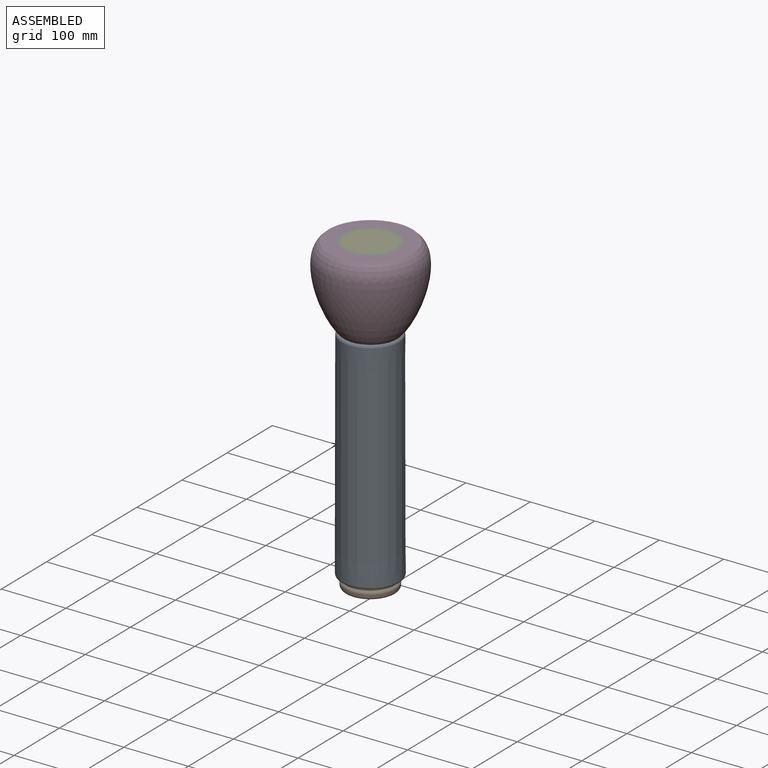
[diagram: assembled view]
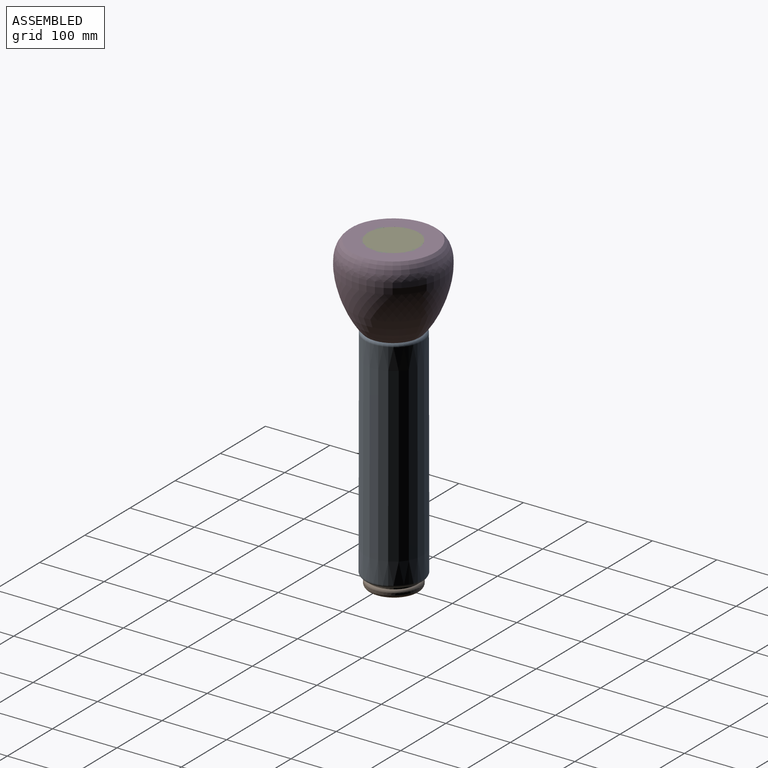
[diagram: assembled view, second angle]
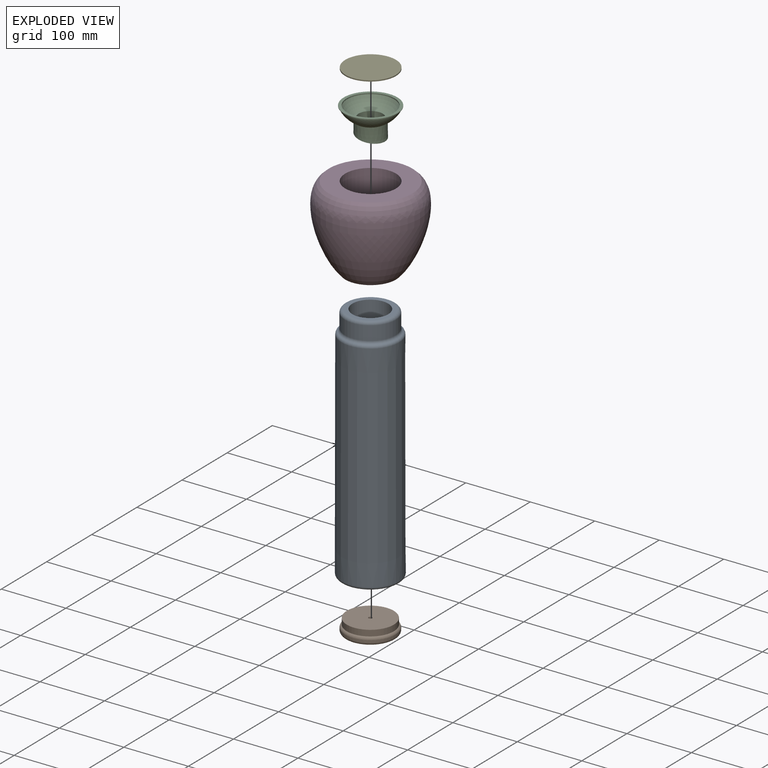
[diagram: exploded view]
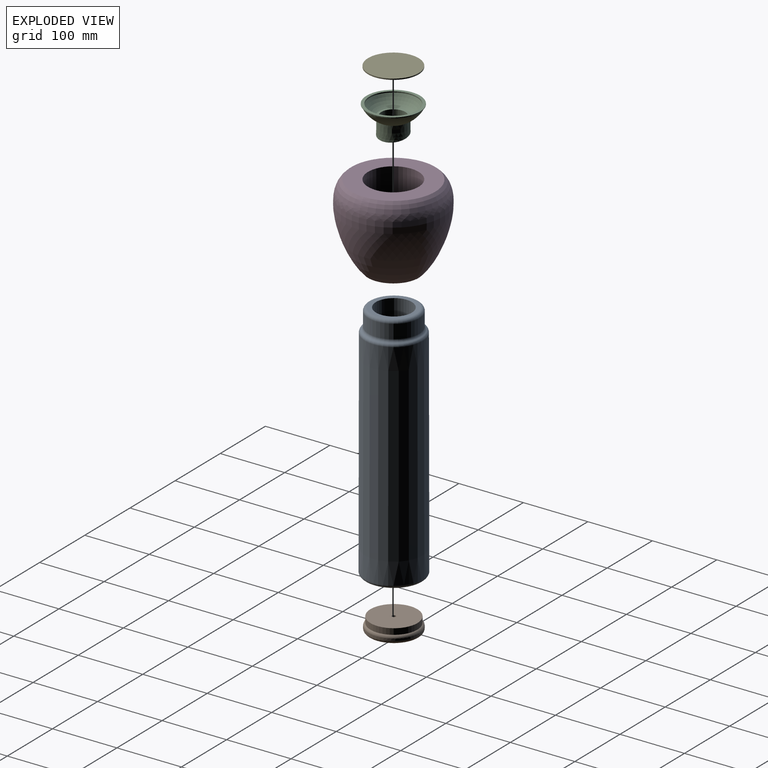
[diagram: exploded view, second angle]
ASSEMBLY  parts=5 mates=3
PART A: 11 faces, bbox 97.6x97.6x374.1 mm
  f0: plane 68.66x68.66mm, normal (0,0,1), area 1270.7mm2, adj f1,f10
  f1: cylinder r=27.82mm len=369.14mm, axis (0,0,1), area 64529.2mm2, adj f0,f6
  f2: plane 80.16x80.16mm, normal (0,0,-1), area 1661.7mm2, adj f6,f7
  f3: cone r=44.58mm half-angle=0.1deg, axis (0,0,-1), area 94033.5mm2, adj f7,f8
  f4: cone r=39.33mm half-angle=55.9deg, axis (0,0,-1), area 277.6mm2, adj f8,f9
  f5: cylinder r=39.33mm len=78.66mm, axis (0,0,1), area 5302.3mm2, adj f9,f10
  f6: torus R=32.82mm, axis (0,0,1), area 1462.6mm2, adj f1,f2
  f7: torus R=40.08mm, axis (0,0,1), area 2136.9mm2, adj f2,f3
  f8: torus R=39.59mm, axis (0,0,-1), area 1340.4mm2, adj f3,f4
  f9: torus R=44.33mm, axis (0,0,1), area 1227.6mm2, adj f4,f5
  f10: torus R=34.33mm, axis (0,0,1), area 1851.2mm2, adj f0,f5
PART B: 8 faces, bbox 84.9x21.3x84.9 mm
  f0: plane 5.6x5.6mm, normal (0,1,0), area 24.6mm2, adj f1
  f1: cylinder r=2.8mm len=9.29mm, axis (0,1,0), area 163.4mm2, adj f0,f2
  f2: plane 72.86x72.86mm, normal (0,1,0), area 4144.7mm2, adj f1,f3
  f3: cylinder r=36.43mm len=72.86mm, axis (0,1,0), area 2126.4mm2, adj f2,f7
  f4: cylinder r=39.23mm len=78.46mm, axis (0,1,0), area 621.2mm2, adj f6,f7
  f5: plane 68.46x68.46mm, normal (0,-1,0), area 3681mm2, adj f6
  f6: torus R=34.23mm, axis (0,-1,0), area 1846.3mm2, adj f4,f5
  f7: torus R=34.23mm, axis (0,1,0), area 1340.3mm2, adj f3,f4
PART C: 14 faces, bbox 84.4x84.4x46.4 mm
  f0: cone r=21.87mm half-angle=0deg, axis (0,0,1), area 2241mm2, adj f1,f12,f13
  f1: cone r=21.87mm half-angle=1.8deg, axis (0,0,-1), area 517.1mm2, adj f0,f2,f13
  f2: cone r=22.1mm half-angle=88.2deg, axis (0,0,1), area 0mm2, adj f1,f13
  f3: cylinder r=18.76mm len=37.52mm, axis (0,0,1), area 2872.8mm2, adj f4,f13
  f4: plane 44.75x44.75mm, normal (0,0,1), area 467mm2, adj f3,f5
  f5: revolved ~73.82x73.82mm, area 4053.5mm2, adj f4,f6
  f6: cylinder r=36.91mm len=73.82mm, axis (0,0,1), area 398.9mm2, adj f5,f7
  f7: plane 83.01x83.01mm, normal (0,0,1), area 1132.2mm2, adj f6,f8
  f8: cylinder r=41.5mm len=83.01mm, axis (0,0,1), area 195.6mm2, adj f7,f9
  f9: plane 83.01x83.01mm, normal (0,0,-1), area 206.6mm2, adj f8,f10
  f10: cylinder r=40.7mm len=81.41mm, axis (0,0,1), area 248.1mm2, adj f9,f11
  f11: plane 81.41x81.41mm, normal (0,0,-1), area 76.4mm2, adj f10,f12
  f12: revolved ~80.81x80.81mm, area 5532.7mm2, adj f0,f11
  f13: plane 45.33x45.28mm, normal (-0.17,0,-0.99), area 418.6mm2, adj f0,f1,f2,f3
PART D: 3 faces, bbox 153.5x153.5x127.6 mm
  f0: plane 129.98x129.98mm, normal (0,0,1), area 8409.6mm2, adj f1,f2
  f1: cylinder r=39.33mm len=127.59mm, axis (0,0,1), area 31530.2mm2, adj f0,f2
  f2: revolved ~153.51x153.51mm, area 58078mm2, adj f0,f1
PART E: 3 faces, bbox 78.6x78.6x1.7 mm
  f0: cylinder r=39.3mm len=78.6mm, axis (0,0,-1), area 429.7mm2, adj f1,f2
  f1: plane 78.6x78.6mm, normal (0,0,1), area 4852.2mm2, adj f0
  f2: plane 78.6x78.6mm, normal (0,0,-1), area 4852.2mm2, adj f0
PLACE A at identity
PLACE B rot(axis=(1,0,0),90deg) t=(-30.62,0,-53.5)mm
PLACE C t=(-40.83,-0.34,400.57)mm
PLACE D t=(5.04,-0.34,337.02)mm
PLACE E t=(-27.13,-0.34,413.04)mm
MATE fastened E.f0 <-> C.f2  axis (0,0,1) through (-27.13,-0.34,413.91)mm
MATE fastened C.f2 <-> D.f1  axis (0,0,1) through (-27.13,-0.34,413.91)mm
MATE fastened B.f6 <-> A.f1  axis (0,0,1) through (-27.82,0,-49.75)mm
